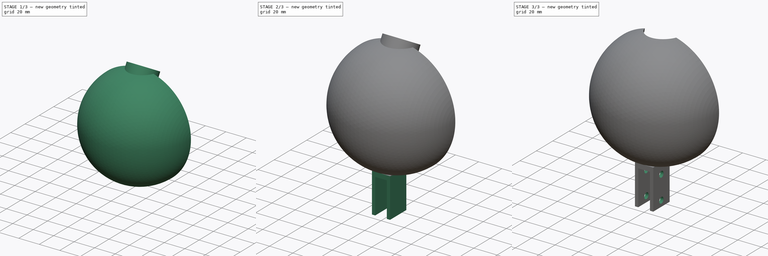
[diagram: build sequence overview — one tinted view per stage of 3, left to right]
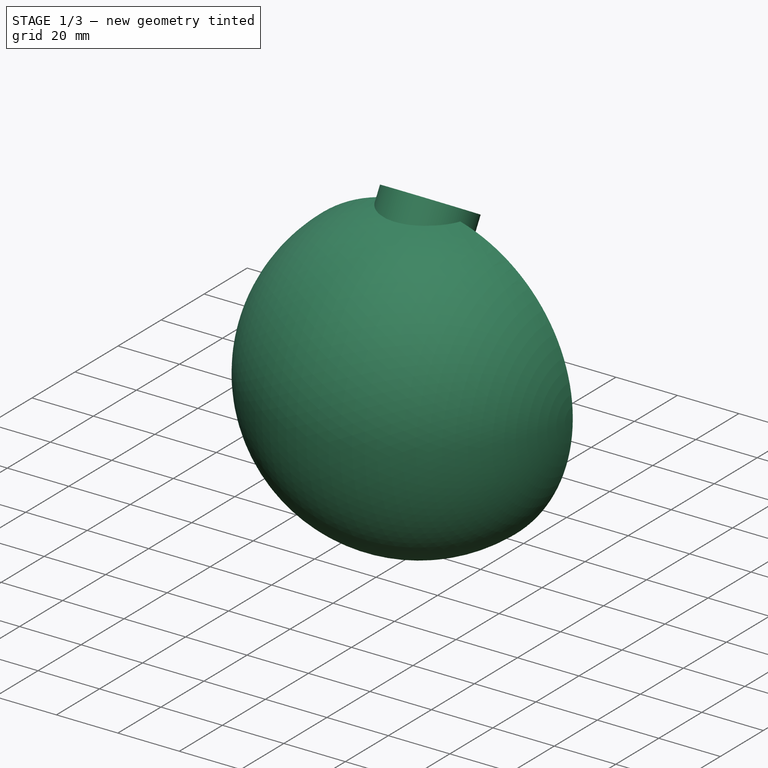
[diagram: stage 1 of 3 — iso view after this stage's code; geometry added in this stage tinted green]
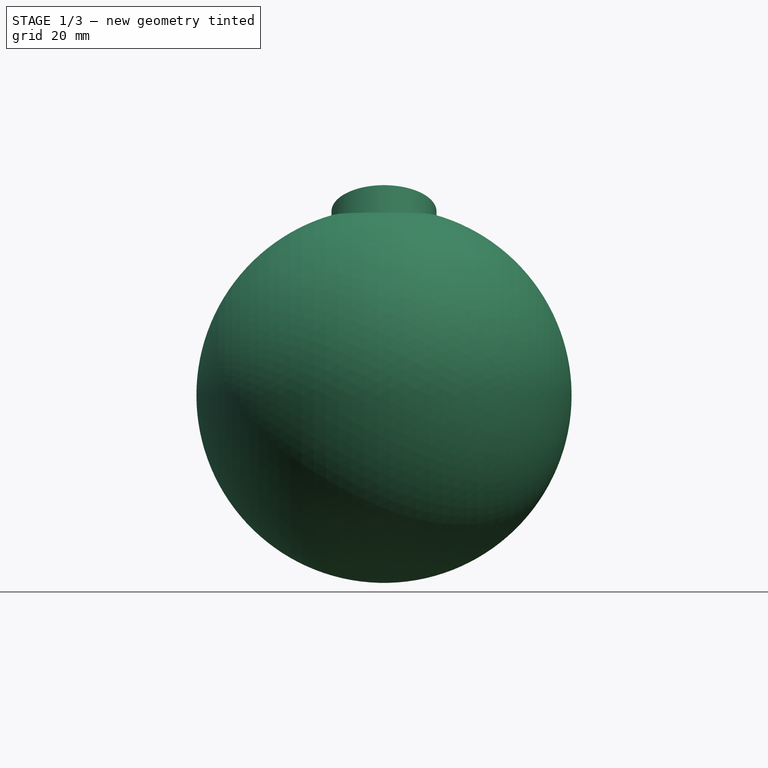
[diagram: stage 1 of 3 — front view after this stage's code; geometry added in this stage tinted green]
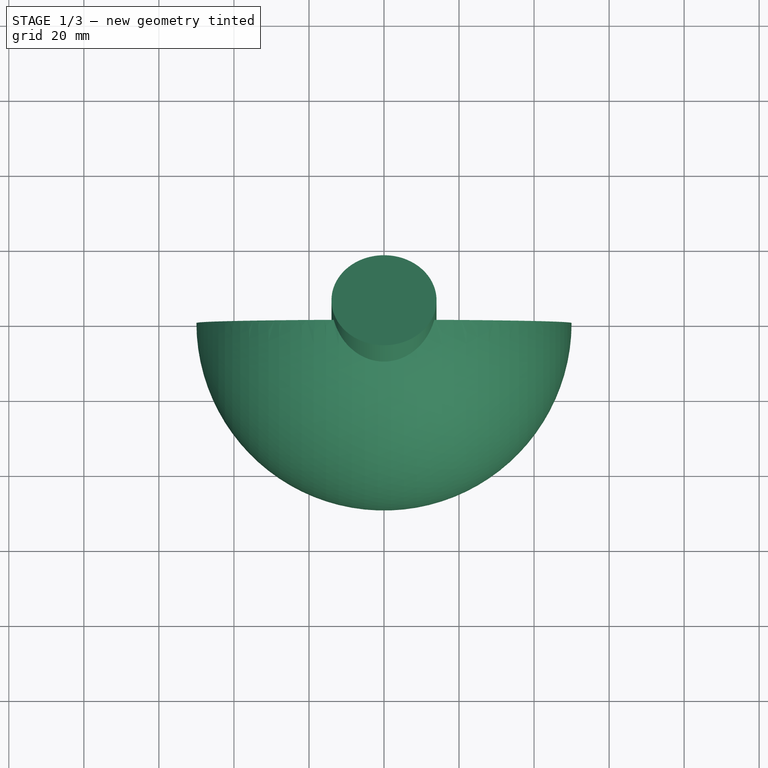
[diagram: stage 1 of 3 — top view after this stage's code; geometry added in this stage tinted green]
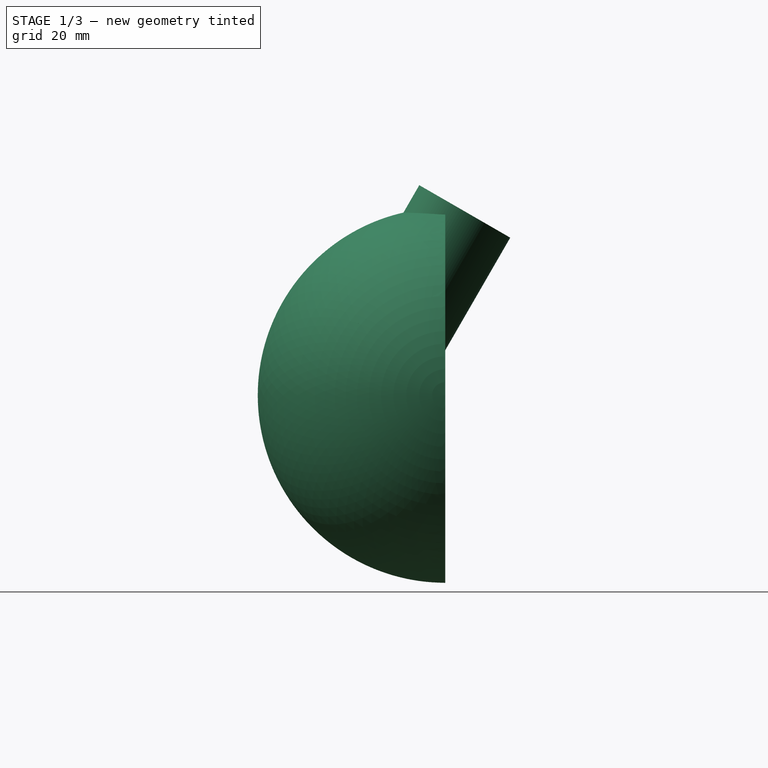
[diagram: stage 1 of 3 — right view after this stage's code; geometry added in this stage tinted green]
FCSTD DOCUMENT  (FreeCAD 0.18R16110 (Git))
Label: pelton_v4
License: All rights reserved
LicenseURL: http://en.wikipedia.org/wiki/All_rights_reserved
objects: Sketcher::SketchObject×3, PartDesign::Revolution×1, PartDesign::Fillet×1, PartDesign::Pad×1, PartDesign::Pocket×1, PartDesign::Body×1, Part::Cylinder×1, Part::Cut×1
note: 13 computed .brp shape members not serialized (recipe doc carries the construction recipe); baked Part::Feature solids carry a one-line shape summary decoded from their .brp

FEATURE [Sketcher::SketchObject] Sketch
  MapMode = 5
  Placement = pos=(0,0,0) rot=(1,0,0;1.5708rad)
  Support = -> [XZ_Plane]
  sketch-geometry (15):
    g0: LineSegment StartX=-47.2 StartY=5.8e-15 StartZ=0 EndX=-50 EndY=0 EndZ=0
    g1: LineSegment StartX=47.2 StartY=0 StartZ=0 EndX=50 EndY=0 EndZ=0
    g2: ArcOfCircle CenterX=0 CenterY=0 CenterZ=0 NormalX=0 NormalY=0 NormalZ=1 AngleXU=0 Radius=50 StartAngle=0 EndAngle=3.14159
    g3: ArcOfCircle CenterX=0 CenterY=0 CenterZ=0 NormalX=0 NormalY=0 NormalZ=1 AngleXU=0 Radius=47.2 StartAngle=1.79677 EndAngle=3.14159
    g4: ArcOfCircle CenterX=0 CenterY=0 CenterZ=0 NormalX=0 NormalY=0 NormalZ=1 AngleXU=0 Radius=47.2 StartAngle=0 EndAngle=1.34482
    g5: ArcOfEllipse CenterX=0 CenterY=0 CenterZ=0 NormalX=0 NormalY=0 NormalZ=1 MajorRadius=47.2079 MinorRadius=11.1364 AngleXU=1.79233 StartAngle=5.52093 EndAngle=6.30203
    g6: LineSegment [constr] StartX=-10.3726 StartY=46.0543 StartZ=0 EndX=10.3726 EndY=-46.0543 EndZ=0
    g7: LineSegment [constr] StartX=-10.8643 StartY=-2.44692 StartZ=0 EndX=10.8643 EndY=2.44692 EndZ=0
    g8: GeomPoint X=-10.0799 Y=44.7545 Z=0
    g9: GeomPoint X=10.0799 Y=-44.7545 Z=0
    g10: ArcOfEllipse CenterX=0 CenterY=0 CenterZ=0 NormalX=0 NormalY=0 NormalZ=1 MajorRadius=47.2681 MinorRadius=10.7417 AngleXU=1.35737 StartAngle=6.22804 EndAngle=7.0449
    g11: LineSegment [constr] StartX=10.012 StartY=46.1956 StartZ=0 EndX=-10.012 EndY=-46.1956 EndZ=0
    g12: LineSegment [constr] StartX=-10.4979 StartY=2.27524 StartZ=0 EndX=10.4979 EndY=-2.27524 EndZ=0
    g13: GeomPoint X=9.7501 Y=44.987 Z=0
    g14: GeomPoint X=-9.7501 Y=-44.987 Z=0
  constraints (24):
    c: PointOnObject(g0,g-1)
    c: PointOnObject(g0,g-1)
    c: PointOnObject(g1,g-1)
    c: PointOnObject(g1,g-1)
    c: DistanceX(g0) = -50
    c: DistanceX(g0) = -47.2
    c: Coincident(g2,g-1)
    c: Coincident(g2,g0)
    c: Coincident(g2,g1)
    c: Coincident(g3,g2)
    c: Coincident(g3,g0)
    c: Coincident(g4,g2)
    c: Coincident(g4,g1)
    c: Symmetric(g3,g4,g-2)
    c: DistanceY(g3) = 46
    c: InternalAlignment(g6-g9 -> g5) x4
    c: Coincident(g5,g2)
    c: PointOnObject(g5,g-2)
    c: Coincident(g5,g3)
    c: InternalAlignment(g11-g14 -> g10) x4
    c: Coincident(g10,g2)
    c: Coincident(g10,g4)
    c: Coincident(g10,g5)
    c: DistanceY(g5) = 35
FEATURE [PartDesign::Revolution] Revolution
  Angle = 180
  Axis = (1,0,0)
  Base = (0,0,0)
  Placement = pos=(0,0,0) rot=(1,0,0;1.5708rad)
  Profile = -> Sketch
  ReferenceAxis = -> Sketch [H_Axis]
FEATURE [PartDesign::Body] Body
  Group = -> [Sketch,Revolution,Fillet,Sketch001,Pad,Sketch002,Pocket]
  Origin = -> Origin
  Tip = -> Pocket
FEATURE [Part::Cylinder] Cylinder
  Angle = 360
  AttacherType = Attacher::AttachEngine3D
  Height = 40
  Placement = pos=(0,-14.7942,14.3756) rot=(1,0,0;5.75959rad)
  Radius = 14
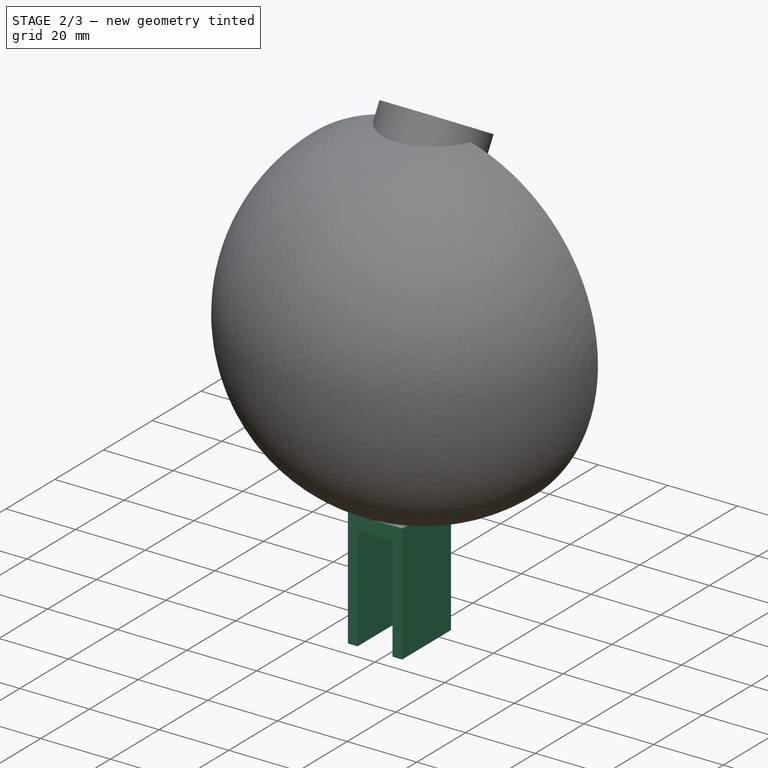
[diagram: stage 2 of 3 — iso view after this stage's code; geometry added in this stage tinted green]
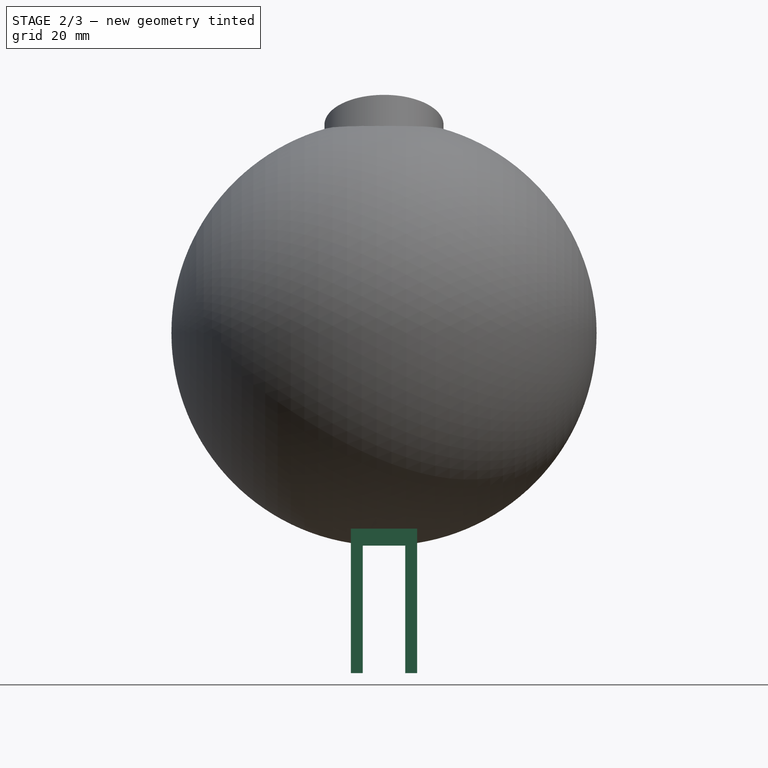
[diagram: stage 2 of 3 — front view after this stage's code; geometry added in this stage tinted green]
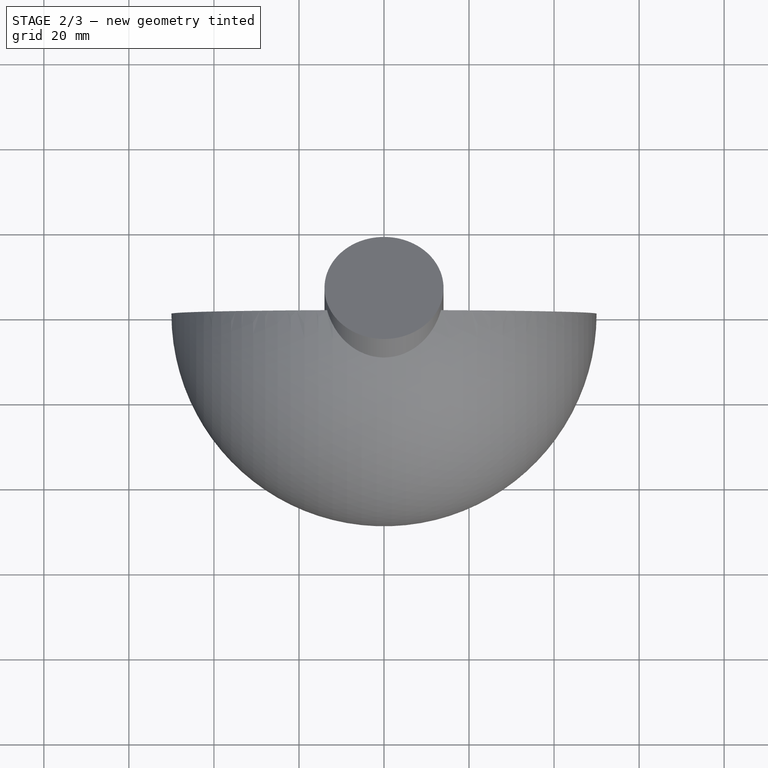
[diagram: stage 2 of 3 — top view after this stage's code; geometry added in this stage tinted green]
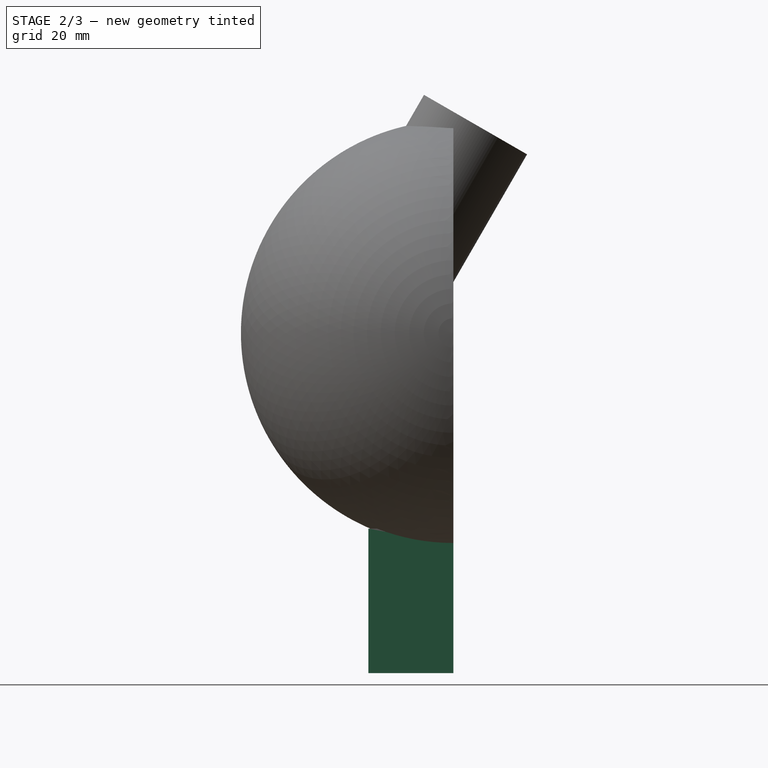
[diagram: stage 2 of 3 — right view after this stage's code; geometry added in this stage tinted green]
FEATURE [PartDesign::Fillet] Fillet
  Base = -> Revolution [Edge13,Edge4,Edge6,Edge7]
  BaseFeature = -> Revolution
  Placement = pos=(0,0,0) rot=(1,0,0;1.5708rad)
  Radius = 1
FEATURE [Sketcher::SketchObject] Sketch001
  MapMode = 5
  Placement = pos=(0,0,0) rot=(-1,0,0;1.5708rad)
  Support = -> [Fillet]
  sketch-geometry (8):
    g0: LineSegment StartX=-5 StartY=50 StartZ=0 EndX=5 EndY=50 EndZ=0
    g1: LineSegment StartX=5 StartY=50 StartZ=0 EndX=5 EndY=80 EndZ=0
    g2: LineSegment StartX=5 StartY=80 StartZ=0 EndX=7.8 EndY=80 EndZ=0
    g3: LineSegment StartX=7.8 StartY=80 StartZ=0 EndX=7.8 EndY=46 EndZ=0
    g4: LineSegment StartX=7.8 StartY=46 StartZ=0 EndX=-7.8 EndY=46 EndZ=0
    g5: LineSegment StartX=-7.8 StartY=46 StartZ=0 EndX=-7.8 EndY=80 EndZ=0
    g6: LineSegment StartX=-7.8 StartY=80 StartZ=0 EndX=-5 EndY=80 EndZ=0
    g7: LineSegment StartX=-5 StartY=80 StartZ=0 EndX=-5 EndY=50 EndZ=0
  constraints (20):
    c: Coincident(g0,g1)
    c: Vertical(g1)
    c: Coincident(g1,g2)
    c: Horizontal(g2)
    c: Coincident(g2,g3)
    c: Vertical(g3)
    c: Coincident(g3,g4)
    c: Coincident(g4,g5)
    c: Coincident(g5,g6)
    c: Coincident(g6,g7)
    c: Coincident(g7,g0)
    c: Symmetric(g0,g0,g-2)
    c: Symmetric(g6,g1,g-2)
    c: Symmetric(g5,g2,g-2)
    c: Symmetric(g4,g3,g-2)
    c: DistanceX(g0) = -5
    c: DistanceX(g4) = -7.8
    c: DistanceY(g4) = 46
    c: DistanceY(g5) = 80
    c: DistanceY(g0) = 50
FEATURE [PartDesign::Pad] Pad
  BaseFeature = -> Fillet
  Length = 20
  Length2 = 100
  Placement = pos=(0,0,0) rot=(1,0,0;1.5708rad)
  Profile = -> Sketch001
  Reversed = true
  Type = 0
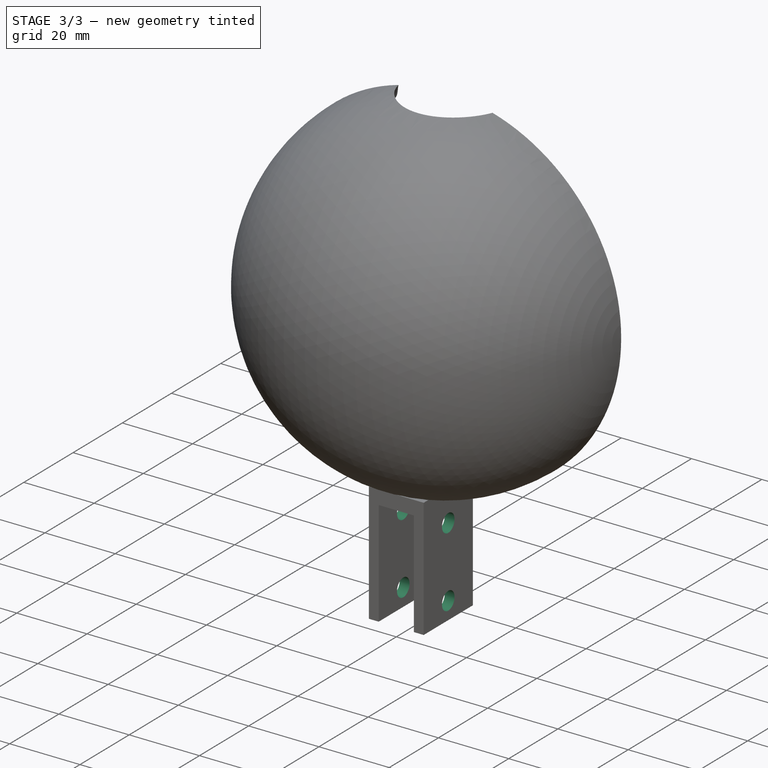
[diagram: stage 3 of 3 — iso view after this stage's code; geometry added in this stage tinted green]
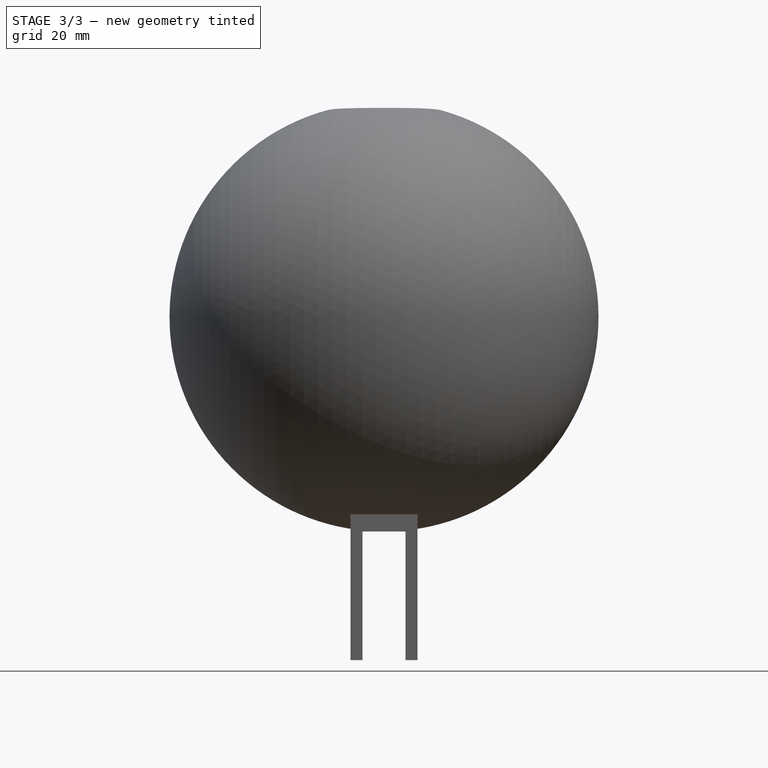
[diagram: stage 3 of 3 — front view after this stage's code; geometry added in this stage tinted green]
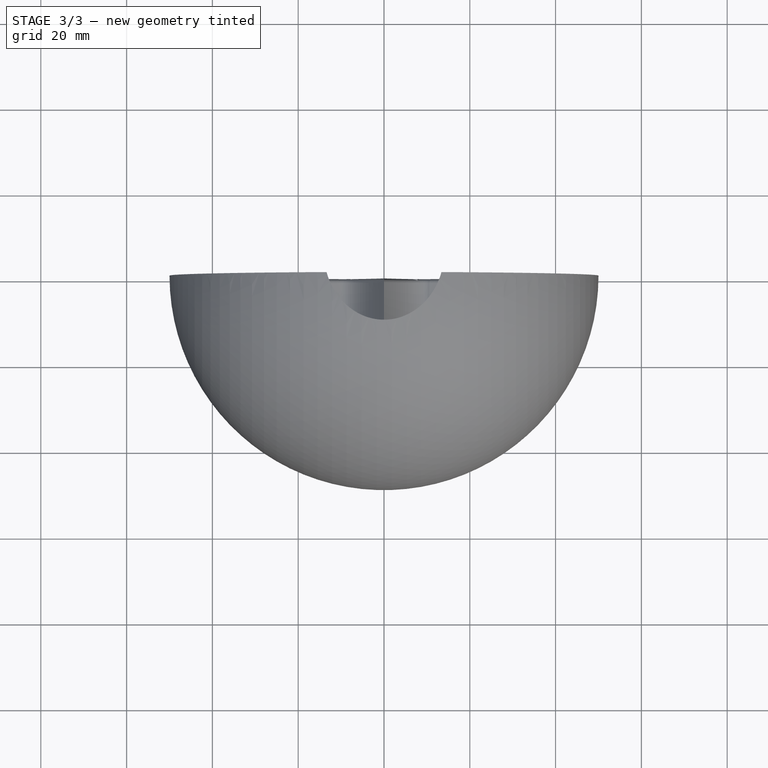
[diagram: stage 3 of 3 — top view after this stage's code; geometry added in this stage tinted green]
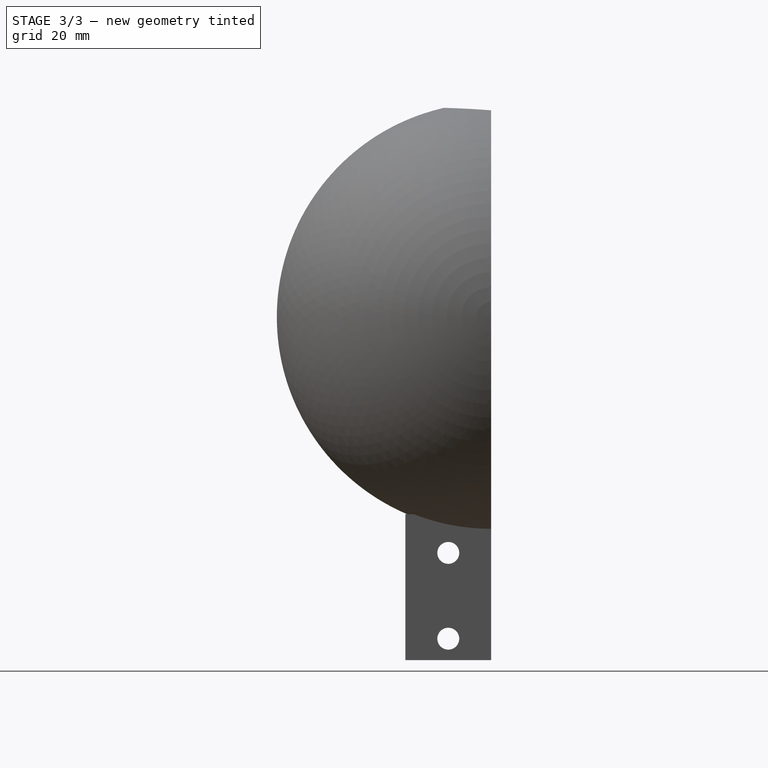
[diagram: stage 3 of 3 — right view after this stage's code; geometry added in this stage tinted green]
FEATURE [Sketcher::SketchObject] Sketch002
  MapMode = 5
  Placement = pos=(-7.8,0,0) rot=(-0.707107,0,0.707107;3.14159rad)
  Support = -> [Pad]
  sketch-geometry (3):
    g0: LineSegment [constr] StartX=55 StartY=10 StartZ=0 EndX=75 EndY=10 EndZ=0
    g1: Circle CenterX=55 CenterY=10 CenterZ=0 NormalX=0 NormalY=0 NormalZ=1 AngleXU=0 Radius=2.55
    g2: Circle CenterX=75 CenterY=10 CenterZ=0 NormalX=0 NormalY=0 NormalZ=1 AngleXU=0 Radius=2.55
  constraints (8):
    c: Horizontal(g0)
    c: DistanceX(g0) = 55
    c: DistanceX(g0) = 75
    c: DistanceY(g0) = 10
    c: Coincident(g1,g0)
    c: Coincident(g2,g0)
    c: Equal(g1,g2)
    c: Radius(g2) = 2.55
FEATURE [PartDesign::Pocket] Pocket
  BaseFeature = -> Pad
  Length = 20
  Length2 = 100
  Placement = pos=(0,0,0) rot=(1,0,0;1.5708rad)
  Profile = -> Sketch002
  Type = 0
FEATURE [Part::Cut] Cut
  Base = -> Body
  Tool = -> Cylinder
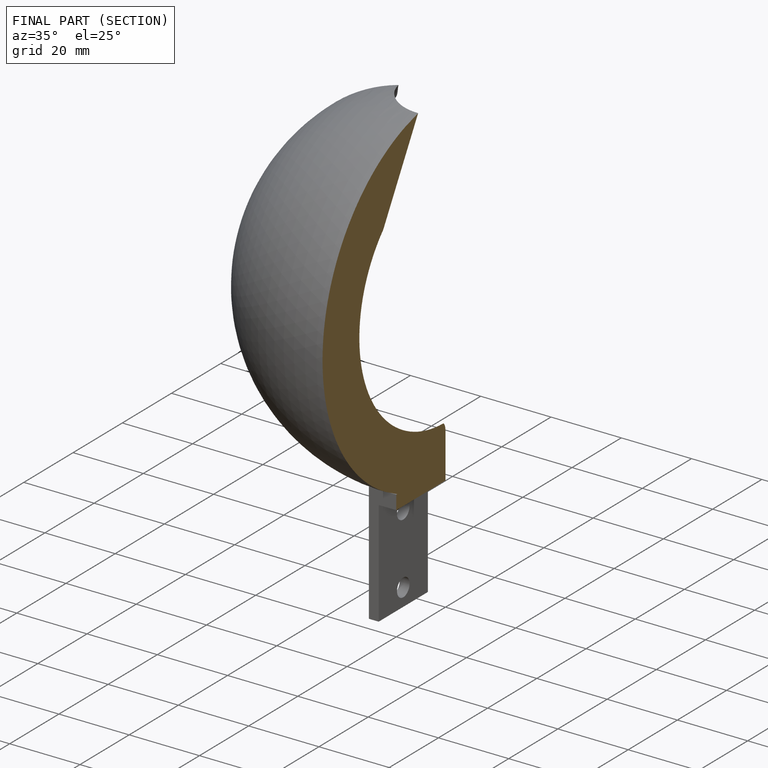
[diagram: finished part — half-section view (interior)]
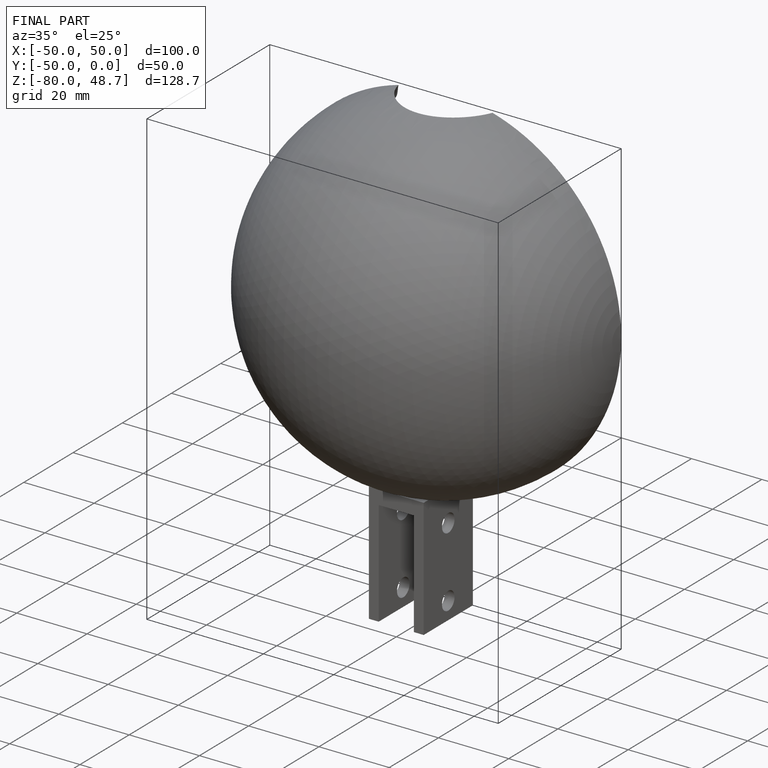
[diagram: finished part — iso view with bounding-box wireframe]
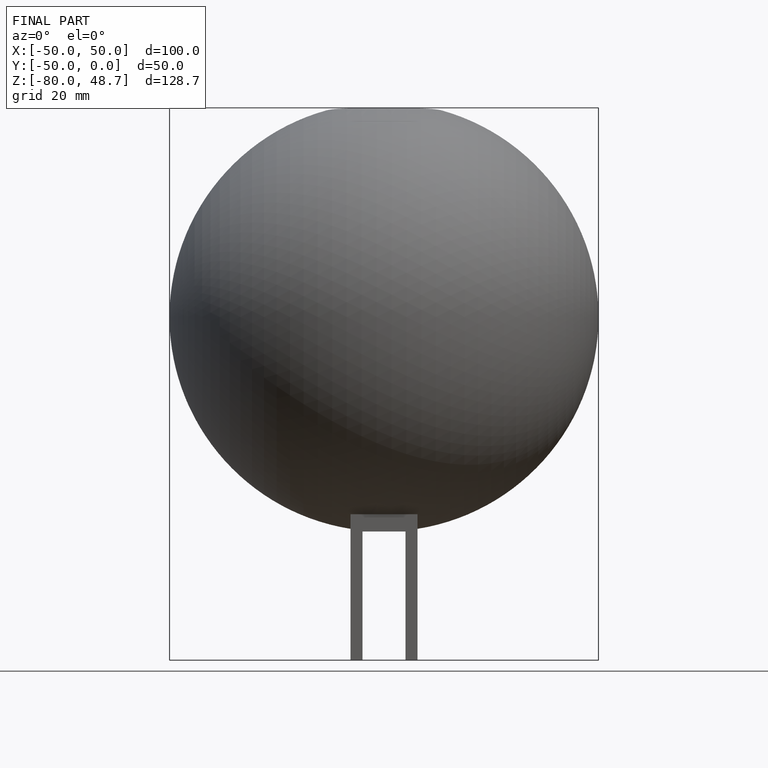
[diagram: finished part — front view with bounding-box wireframe]
